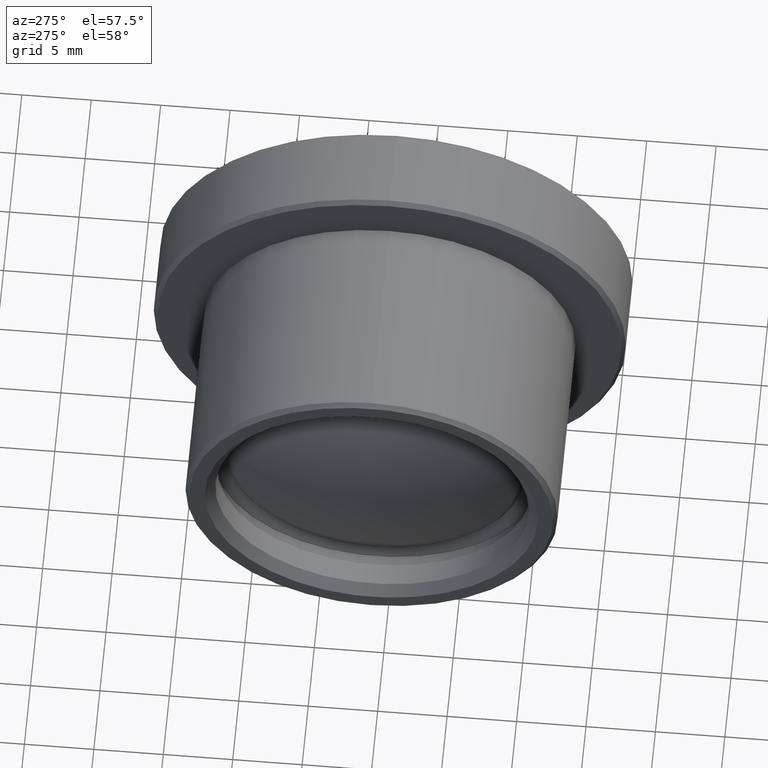
[diagram: clean part render]
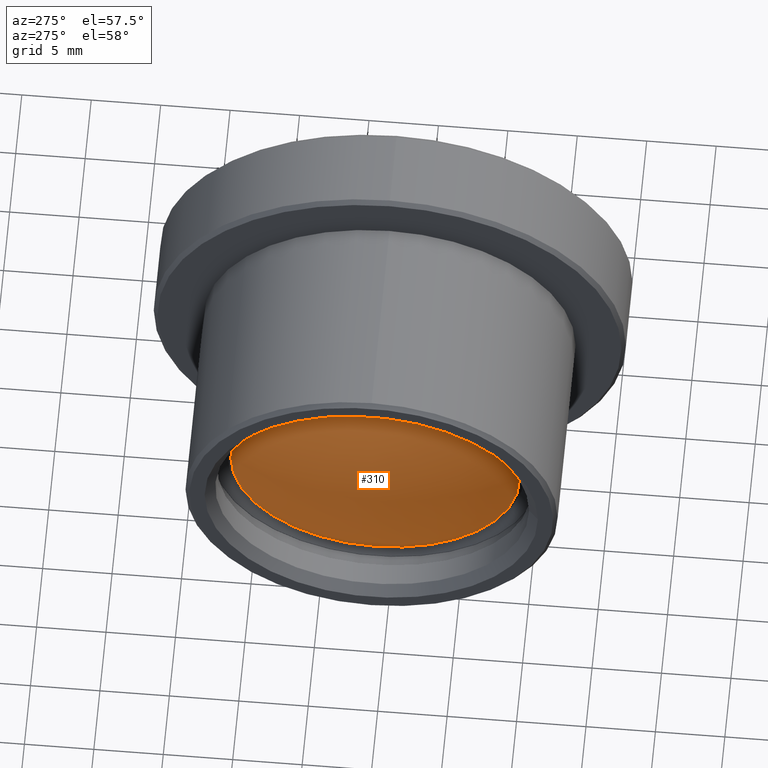
[diagram: same view with one face highlighted and labeled with its STEP entity id]
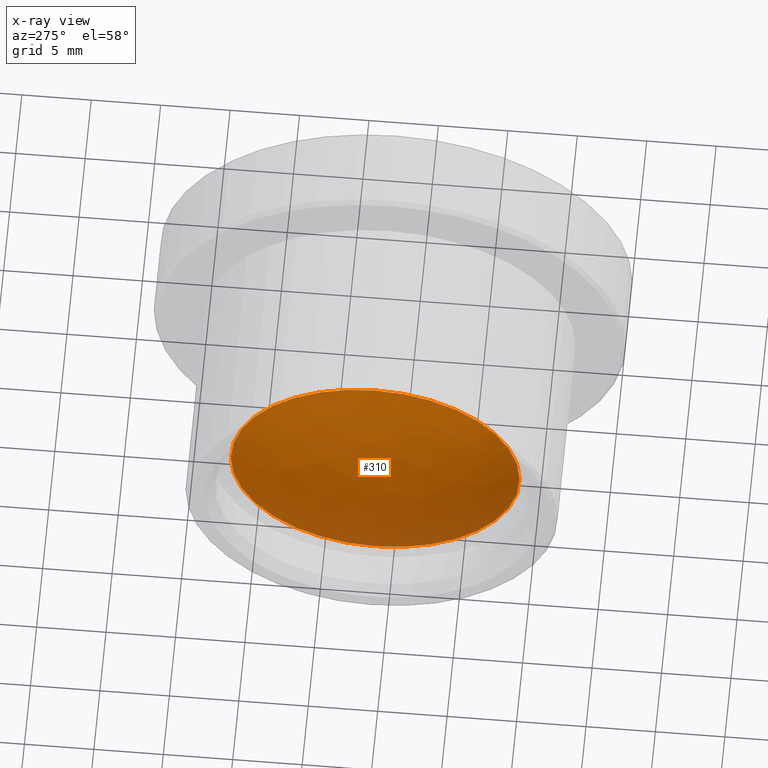
[diagram: x-ray of the same camera — body ghosted, the highlighted face saturated]
A machine part, auxiliary view. The second image highlights one B-rep face of the part: STEP entity #310.
The next image is the same camera in x-ray: the body ghosted, the highlighted face saturated — about 0% of this face is hidden behind the body in this view.
In plain terms, the highlighted face is a freeform B-spline surface patch.
Its self-contained STEP definition (entity closure, byte-faithful):
#15 = CARTESIAN_POINT ( 'NONE',  ( 7643.420402116918012, -200.1611946171682348, -11.04586798217061627 ) ) ;
#18 = CARTESIAN_POINT ( 'NONE',  ( 7643.476783483160943, -214.6072566139389153, -3.305779238781193285 ) ) ;
#51 = CARTESIAN_POINT ( 'NONE',  ( 7646.805328622443994, -193.4639260515820922, -9.075344728438510700 ) ) ;
#52 = CARTESIAN_POINT ( 'NONE',  ( 7646.827875168386527, -214.6072566139389153, -9.062219334726135500 ) ) ;
#55 = CARTESIAN_POINT ( 'NONE',  ( 7643.428675501929320, -207.9196741031916531, -11.04105165971077263 ) ) ;
#57 = CARTESIAN_POINT ( 'NONE',  ( 7644.269570587941416, -204.0133495471515630, 0.000000000000000000 ) ) ;
#83 = CARTESIAN_POINT ( 'NONE',  ( 7646.829012104044523, -193.4639260515820922, 9.115906206490720365 ) ) ;
#92 = CARTESIAN_POINT ( 'NONE',  ( 7639.345837176527311, -207.9196741031915963, -4.027631422594006416 ) ) ;
#124 = CARTESIAN_POINT ( 'NONE',  ( 7639.356402569862439, -207.9196741031915963, 4.087633242606061756 ) ) ;
#132 = ORIENTED_EDGE ( 'NONE', *, *, #272, .F. ) ;
#142 = EDGE_LOOP ( 'NONE', ( #132 ) ) ;
#163 = CARTESIAN_POINT ( 'NONE',  ( 7646.851524397291541, -214.6072566139389153, 9.102722149953557107 ) ) ;
#191 = VERTEX_POINT ( 'NONE', #461 ) ;
#239 = CARTESIAN_POINT ( 'NONE',  ( 7643.485455294026906, -214.6072566139389153, 3.355027233463912850 ) ) ;
#246 = CARTESIAN_POINT ( 'NONE',  ( 7643.449383336115716, -193.4639260515820922, -3.310567210958084150 ) ) ;
#248 = CARTESIAN_POINT ( 'NONE',  ( 7643.457488792406366, -207.9196741031916531, 11.09039869698413838 ) ) ;
#272 = EDGE_CURVE ( 'NONE', #191, #191, #380, .T. ) ;
#296 = AXIS2_PLACEMENT_3D ( 'NONE', #57, #352, #392 ) ;
#299 =( BOUNDED_SURFACE ( )  B_SPLINE_SURFACE ( 3, 3, ( 
 ( #51, #246, #355, #83 ),
 ( #15, #322, #475, #429 ),
 ( #55, #92, #124, #248 ),
 ( #52, #18, #239, #163 ) ),
 .UNSPECIFIED., .F., .F., .F. ) 
 B_SPLINE_SURFACE_WITH_KNOTS ( ( 4, 4 ),
 ( 4, 4 ),
 ( 0.000000000000000000, 1.000000000000000000 ),
 ( 0.000000000000000000, 1.000000000000000000 ),
 .UNSPECIFIED. ) 
 GEOMETRIC_REPRESENTATION_ITEM ( )  RATIONAL_B_SPLINE_SURFACE ( (
 ( 1.000000000000000000, 0.9090461523126416310, 0.9090461523126416310, 1.000000000000000000),
 ( 0.9083966603011912611, 0.8257744888204516798, 0.8257744888204516798, 0.9083966603011912611),
 ( 0.9083966603011912611, 0.8257744888204516798, 0.8257744888204516798, 0.9083966603011912611),
 ( 1.000000000000000000, 0.9090461523126416310, 0.9090461523126416310, 1.000000000000000000) ) ) 
 REPRESENTATION_ITEM ( '' )  SURFACE ( )  );
#310 = ADVANCED_FACE ( 'NONE', ( #471 ), #299, .T. ) ;
#322 = CARTESIAN_POINT ( 'NONE',  ( 7639.335782777664463, -200.1611946171682632, -4.029388354114670001 ) ) ;
#352 = DIRECTION ( 'NONE',  ( 1.000000000000000000, 0.000000000000000000, 0.000000000000000000 ) ) ;
#355 = CARTESIAN_POINT ( 'NONE',  ( 7643.458067706923430, -193.4639260515820922, 3.359886534670175617 ) ) ;
#380 = CIRCLE ( 'NONE', #296, 10.39999999999781011 ) ;
#392 = DIRECTION ( 'NONE',  ( 0.000000000000000000, 0.000000000000000000, -1.000000000000000000 ) ) ;
#429 = CARTESIAN_POINT ( 'NONE',  ( 7643.449227976315342, -200.1611946171682348, 11.09523654558497441 ) ) ;
#461 = CARTESIAN_POINT ( 'NONE',  ( 7644.269570587941416, -204.0133495471515630, -10.39999999999781011 ) ) ;
#471 = FACE_OUTER_BOUND ( 'NONE', #142, .T. ) ;
#475 = CARTESIAN_POINT ( 'NONE',  ( 7639.346352779831250, -200.1611946171682632, 4.089416348092069775 ) ) ;